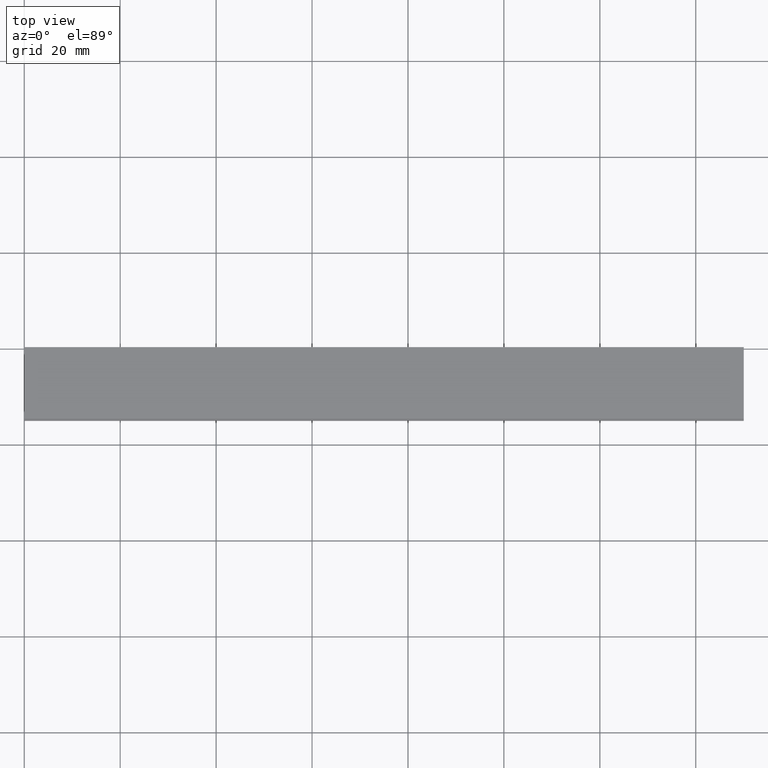
[diagram: clean part render]
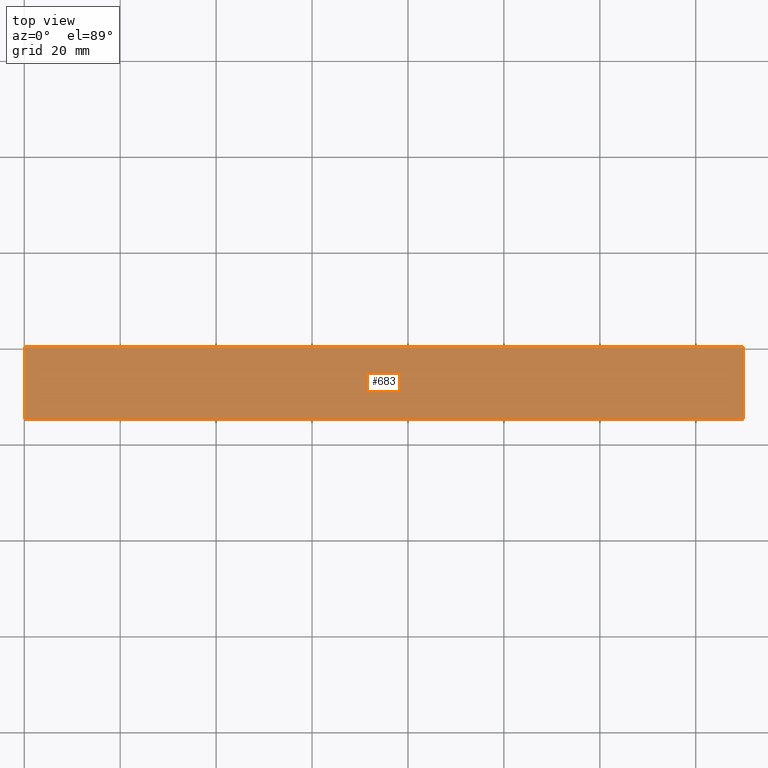
[diagram: same view with one face highlighted and labeled with its STEP entity id]
A machine part, top view. The second image highlights one B-rep face of the part: STEP entity #683.
In plain terms, the highlighted face is a freeform B-spline surface patch.
Its self-contained STEP definition (entity closure, byte-faithful):
#437=CARTESIAN_POINT('',(0.0,-15.0,-1.0));
#438=VERTEX_POINT('',#437);
#446=CARTESIAN_POINT('',(0.0,0.0,0.0));
#447=VERTEX_POINT('',#446);
#448=CARTESIAN_POINT('',(0.0,0.0,0.0));
#449=CARTESIAN_POINT('',(0.0,-15.0,-1.0));
#450=QUASI_UNIFORM_CURVE('',1,(#448,#449),.UNSPECIFIED.,.F.,.U.);
#451=EDGE_CURVE('',#447,#438,#450,.T.);
#553=CARTESIAN_POINT('',(150.0,-15.0,-1.0));
#554=VERTEX_POINT('',#553);
#649=CARTESIAN_POINT('',(150.0,0.0,0.0));
#650=VERTEX_POINT('',#649);
#656=CARTESIAN_POINT('',(150.0,0.0,0.0));
#657=CARTESIAN_POINT('',(150.0,-15.0,-1.0));
#658=QUASI_UNIFORM_CURVE('',1,(#656,#657),.UNSPECIFIED.,.F.,.U.);
#659=EDGE_CURVE('',#650,#554,#658,.T.);
#664=CARTESIAN_POINT('',(-7.492499709270883,-15.749249970927091,-1.049949998061812));
#665=CARTESIAN_POINT('',(-7.492499709270883,0.749250373258442,0.049950024883896));
#666=CARTESIAN_POINT('',(157.492503732584400,-15.749249970927091,-1.049949998061812));
#667=CARTESIAN_POINT('',(157.492503732584400,0.749250373258442,0.049950024883896));
#668=B_SPLINE_SURFACE_WITH_KNOTS('',1,1,((#664,#666),(#665,#667)),.UNSPECIFIED.,.F.,.F.,.U.,(2,2),(2,2),(0.0,16.535123031521898),(0.0,164.985003441855300),.UNSPECIFIED.);
#669=ORIENTED_EDGE('',*,*,#451,.T.);
#670=CARTESIAN_POINT('',(150.0,-15.0,-1.0));
#671=CARTESIAN_POINT('',(0.0,-15.0,-1.0));
#672=QUASI_UNIFORM_CURVE('',1,(#670,#671),.UNSPECIFIED.,.F.,.U.);
#673=EDGE_CURVE('',#554,#438,#672,.T.);
#674=ORIENTED_EDGE('',*,*,#673,.F.);
#675=ORIENTED_EDGE('',*,*,#659,.F.);
#676=CARTESIAN_POINT('',(150.0,0.0,0.0));
#677=CARTESIAN_POINT('',(0.0,0.0,0.0));
#678=QUASI_UNIFORM_CURVE('',1,(#676,#677),.UNSPECIFIED.,.F.,.U.);
#679=EDGE_CURVE('',#650,#447,#678,.T.);
#680=ORIENTED_EDGE('',*,*,#679,.T.);
#681=EDGE_LOOP('',(#669,#674,#675,#680));
#682=FACE_OUTER_BOUND('',#681,.T.);
#683=ADVANCED_FACE('',(#682),#668,.F.);